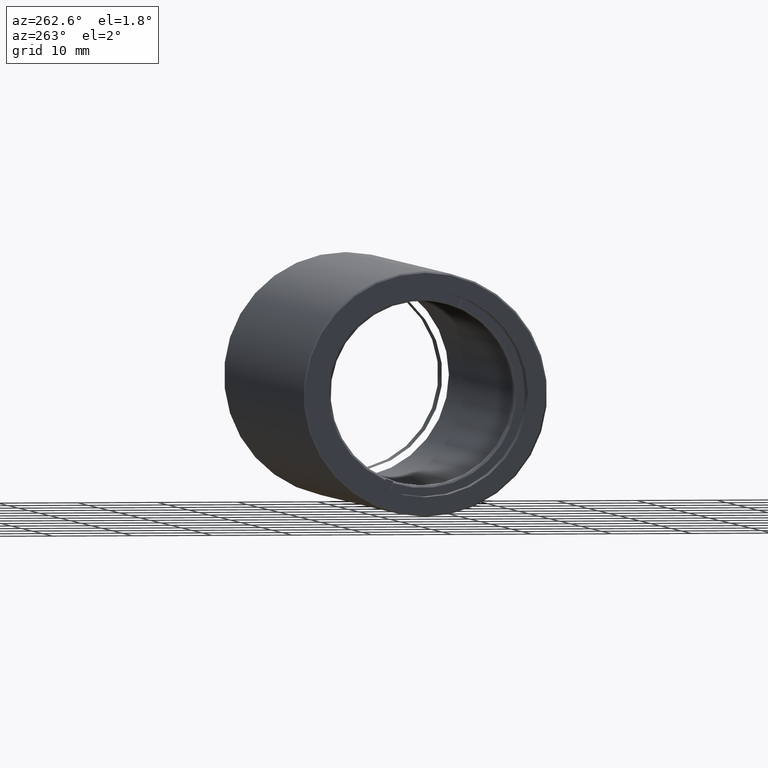
[diagram: clean part render]
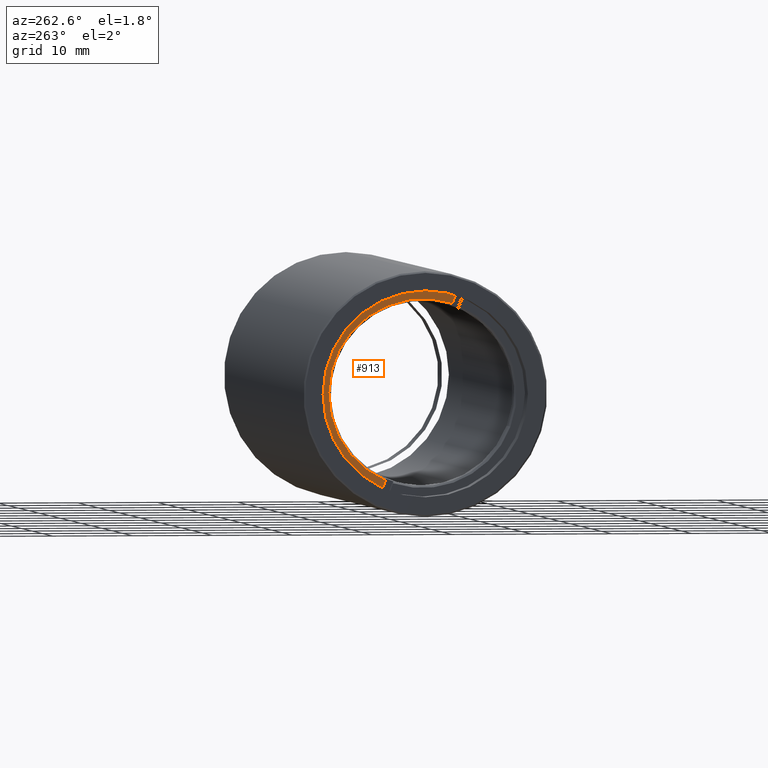
[diagram: same view with one face highlighted and labeled with its STEP entity id]
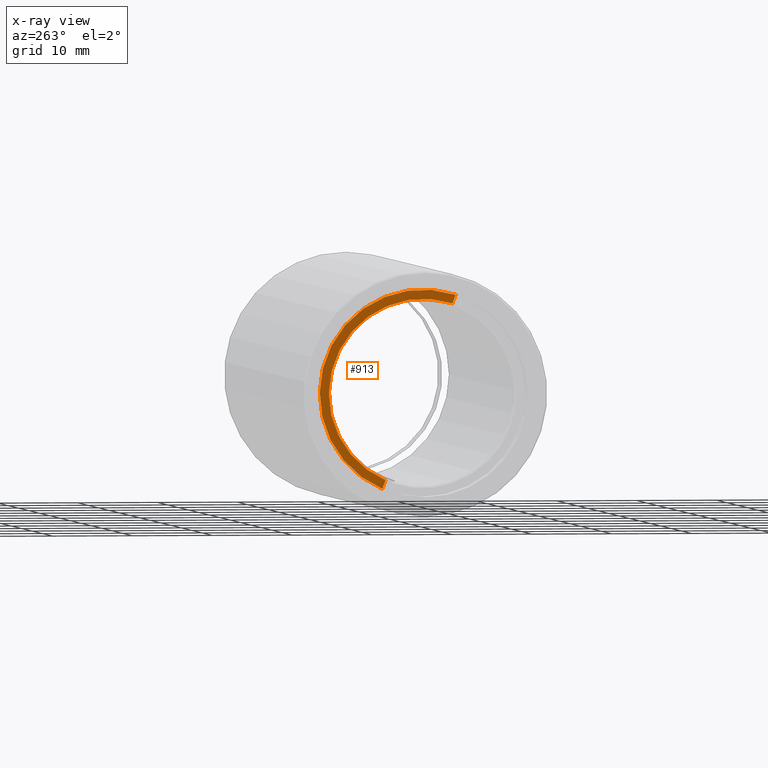
[diagram: x-ray of the same camera — body ghosted, the highlighted face saturated]
A machine part, auxiliary view. The second image highlights one B-rep face of the part: STEP entity #913.
The next image is the same camera in x-ray: the body ghosted, the highlighted face saturated — about 0% of this face is hidden behind the body in this view.
In plain terms, the highlighted planar face has unit normal (-1, 0, 0).
Its self-contained STEP definition (entity closure, byte-faithful):
#13 = DIRECTION ( 'NONE',  ( 0.000000000000000000, -0.9344436793299412125, -0.3561109520364712511 ) ) ;
#19 = DIRECTION ( 'NONE',  ( -1.000000000000000000, -2.105809034732733731E-31, -4.356099237842403491E-33 ) ) ;
#29 = VECTOR ( 'NONE', #1419, 1000.000000000000000 ) ;
#57 = ORIENTED_EDGE ( 'NONE', *, *, #366, .F. ) ;
#80 = CARTESIAN_POINT ( 'NONE',  ( -70.79126707755102643, -20.10857142857142676, 2.361527856944989345E-15 ) ) ;
#98 = CIRCLE ( 'NONE', #499, 11.75449999999999129 ) ;
#338 = EDGE_CURVE ( 'NONE', #1015, #1150, #439, .T. ) ;
#356 = VECTOR ( 'NONE', #425, 1000.000000000000000 ) ;
#366 = EDGE_CURVE ( 'NONE', #1183, #1401, #731, .T. ) ;
#425 = DIRECTION ( 'NONE',  ( 1.016436863998647547E-31, 0.3561109520364713066, -0.9344436793299412125 ) ) ;
#439 = LINE ( 'NONE', #668, #29 ) ;
#457 = DIRECTION ( 'NONE',  ( -1.961032037255643838E-31, -0.9344436793299412125, -0.3561109520364713621 ) ) ;
#482 = ORIENTED_EDGE ( 'NONE', *, *, #338, .F. ) ;
#486 = AXIS2_PLACEMENT_3D ( 'NONE', #532, #19, #13 ) ;
#499 = AXIS2_PLACEMENT_3D ( 'NONE', #838, #964, #724 ) ;
#532 = CARTESIAN_POINT ( 'NONE',  ( -70.79126707755102643, -20.10857142857142676, 2.361527856944989345E-15 ) ) ;
#574 = DIRECTION ( 'NONE',  ( -1.000000000000000000, 1.579921399038623915E-31, 1.361049047534613811E-31 ) ) ;
#668 = CARTESIAN_POINT ( 'NONE',  ( -70.79126707755102643, -57.03299955273589461, 98.29464180566191089 ) ) ;
#682 = ORIENTED_EDGE ( 'NONE', *, *, #1423, .T. ) ;
#724 = DIRECTION ( 'NONE',  ( 0.000000000000000000, -0.9344436793299415456, -0.3561109520364705849 ) ) ;
#731 = LINE ( 'NONE', #1067, #356 ) ;
#777 = EDGE_LOOP ( 'NONE', ( #482, #799, #57, #682 ) ) ;
#799 = ORIENTED_EDGE ( 'NONE', *, *, #1118, .T. ) ;
#838 = CARTESIAN_POINT ( 'NONE',  ( -70.79126707755102643, -20.10857142857142676, 2.361527856944989345E-15 ) ) ;
#896 = CARTESIAN_POINT ( 'NONE',  ( -70.79126707755102643, -23.82346709598917300, 11.15203212110692554 ) ) ;
#913 = ADVANCED_FACE ( 'NONE', ( #1022 ), #1407, .T. ) ;
#964 = DIRECTION ( 'NONE',  ( 1.000000000000000000, 2.105809034732733731E-31, 4.356099237842403491E-33 ) ) ;
#978 = CARTESIAN_POINT ( 'NONE',  ( -70.79126707755102643, -24.22976880193084526, 12.21817754249033072 ) ) ;
#1015 = VERTEX_POINT ( 'NONE', #978 ) ;
#1022 = FACE_OUTER_BOUND ( 'NONE', #777, .T. ) ;
#1067 = CARTESIAN_POINT ( 'NONE',  ( -70.79126707755102643, -57.03299955273589461, 98.29464180566191089 ) ) ;
#1118 = EDGE_CURVE ( 'NONE', #1015, #1401, #1328, .T. ) ;
#1150 = VERTEX_POINT ( 'NONE', #896 ) ;
#1183 = VERTEX_POINT ( 'NONE', #1485 ) ;
#1296 = AXIS2_PLACEMENT_3D ( 'NONE', #80, #574, #457 ) ;
#1325 = CARTESIAN_POINT ( 'NONE',  ( -70.79126707755102643, -15.05293037588206673, -11.86206659045385692 ) ) ;
#1328 = CIRCLE ( 'NONE', #486, 12.89449999999999363 ) ;
#1401 = VERTEX_POINT ( 'NONE', #1325 ) ;
#1407 = PLANE ( 'NONE',  #1296 ) ;
#1419 = DIRECTION ( 'NONE',  ( 1.016436863998647547E-31, 0.3561109520364713066, -0.9344436793299412125 ) ) ;
#1423 = EDGE_CURVE ( 'NONE', #1183, #1150, #98, .T. ) ;
#1485 = CARTESIAN_POINT ( 'NONE',  ( -70.79126707755102643, -15.45923208182374253, -10.79592116907045174 ) ) ;